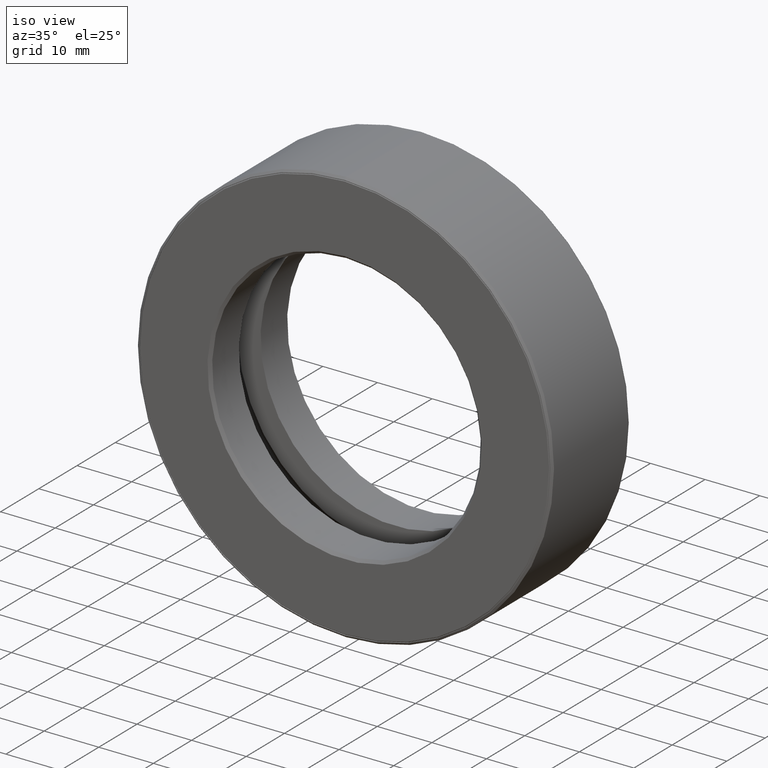
[diagram: clean part render]
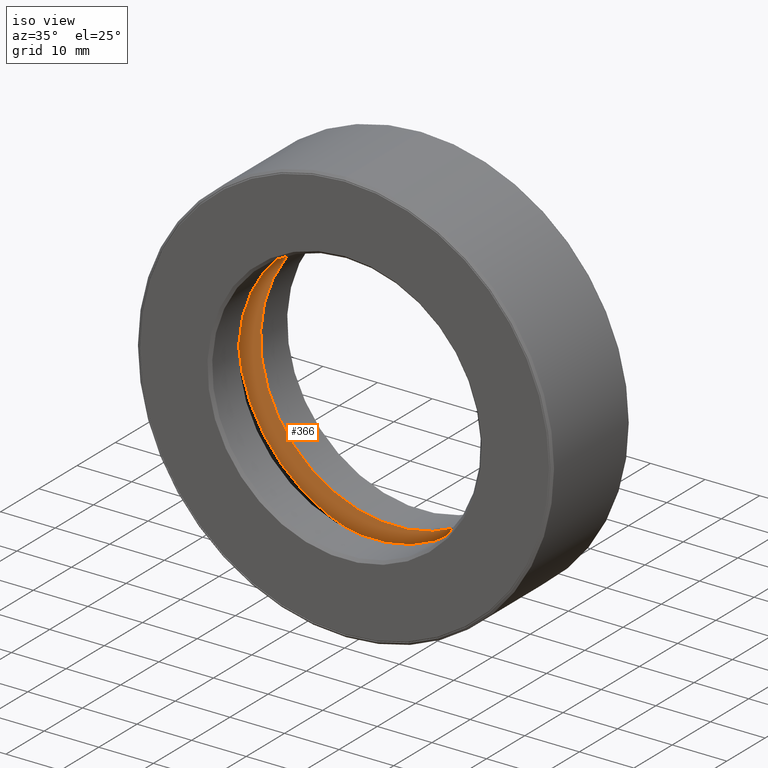
[diagram: same view with one face highlighted and labeled with its STEP entity id]
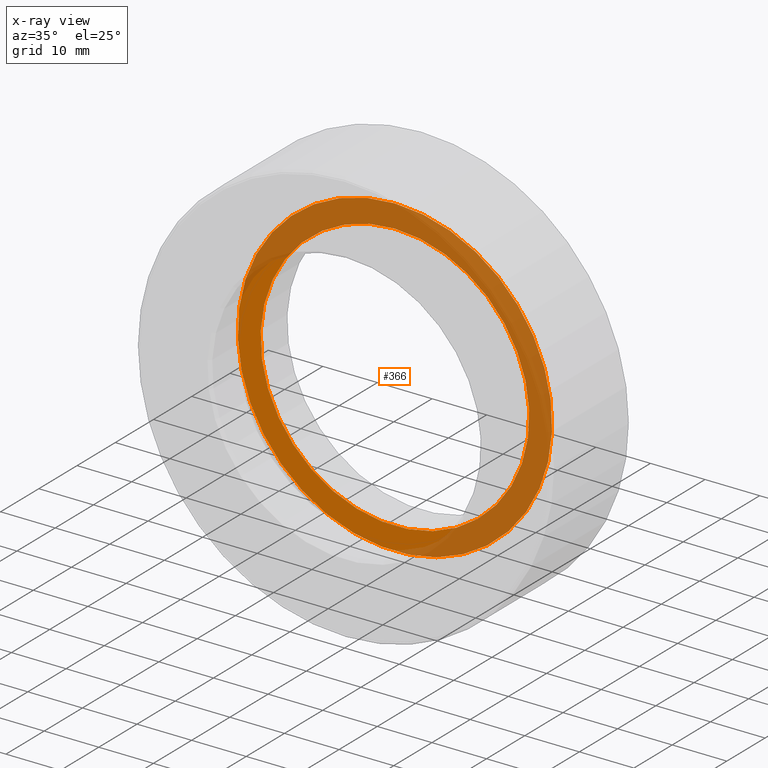
[diagram: x-ray of the same camera — body ghosted, the highlighted face saturated]
A machine part, iso view. The second image highlights one B-rep face of the part: STEP entity #366.
The next image is the same camera in x-ray: the body ghosted, the highlighted face saturated — about 64% of this face is hidden behind the body in this view.
In plain terms, the highlighted planar face has unit normal (0, -1, 0).
Its self-contained STEP definition (entity closure, byte-faithful):
#1 = CARTESIAN_POINT ( 'NONE',  ( 0.0000000000000000000, 0.5187499999999997100, 0.9687500000000001100 ) ) ;
#12 = CIRCLE ( 'NONE', #398, 0.9687500000000001100 ) ;
#36 = VERTEX_POINT ( 'NONE', #100 ) ;
#68 = AXIS2_PLACEMENT_3D ( 'NONE', #117, #491, #408 ) ;
#76 = CARTESIAN_POINT ( 'NONE',  ( 0.0000000000000000000, 0.5187499999999997100, 0.0000000000000000000 ) ) ;
#85 = VERTEX_POINT ( 'NONE', #1 ) ;
#100 = CARTESIAN_POINT ( 'NONE',  ( 0.0000000000000000000, 0.5187499999999997100, 1.133499999999999700 ) ) ;
#117 = CARTESIAN_POINT ( 'NONE',  ( 0.0000000000000000000, 0.5187499999999997100, 0.0000000000000000000 ) ) ;
#212 = CIRCLE ( 'NONE', #220, 1.133499999999999700 ) ;
#218 = ORIENTED_EDGE ( 'NONE', *, *, #235, .T. ) ;
#220 = AXIS2_PLACEMENT_3D ( 'NONE', #76, #404, #306 ) ;
#235 = EDGE_CURVE ( 'NONE', #85, #85, #12, .T. ) ;
#250 = FACE_BOUND ( 'NONE', #421, .T. ) ;
#252 = DIRECTION ( 'NONE',  ( -0.0000000000000000000, 1.000000000000000000, -0.0000000000000000000 ) ) ;
#265 = PLANE ( 'NONE',  #68 ) ;
#306 = DIRECTION ( 'NONE',  ( 0.0000000000000000000, 0.0000000000000000000, 1.000000000000000000 ) ) ;
#349 = DIRECTION ( 'NONE',  ( 0.0000000000000000000, 0.0000000000000000000, 1.000000000000000000 ) ) ;
#352 = CARTESIAN_POINT ( 'NONE',  ( 0.0000000000000000000, 0.5187499999999997100, 0.0000000000000000000 ) ) ;
#364 = EDGE_CURVE ( 'NONE', #36, #36, #212, .T. ) ;
#366 = ADVANCED_FACE ( 'NONE', ( #250, #586 ), #265, .T. ) ;
#398 = AXIS2_PLACEMENT_3D ( 'NONE', #352, #252, #349 ) ;
#404 = DIRECTION ( 'NONE',  ( -0.0000000000000000000, 1.000000000000000000, -0.0000000000000000000 ) ) ;
#408 = DIRECTION ( 'NONE',  ( 0.0000000000000000000, -0.0000000000000000000, -1.000000000000000000 ) ) ;
#421 = EDGE_LOOP ( 'NONE', ( #218 ) ) ;
#491 = DIRECTION ( 'NONE',  ( 0.0000000000000000000, -1.000000000000000000, 0.0000000000000000000 ) ) ;
#556 = ORIENTED_EDGE ( 'NONE', *, *, #364, .F. ) ;
#571 = EDGE_LOOP ( 'NONE', ( #556 ) ) ;
#586 = FACE_OUTER_BOUND ( 'NONE', #571, .T. ) ;